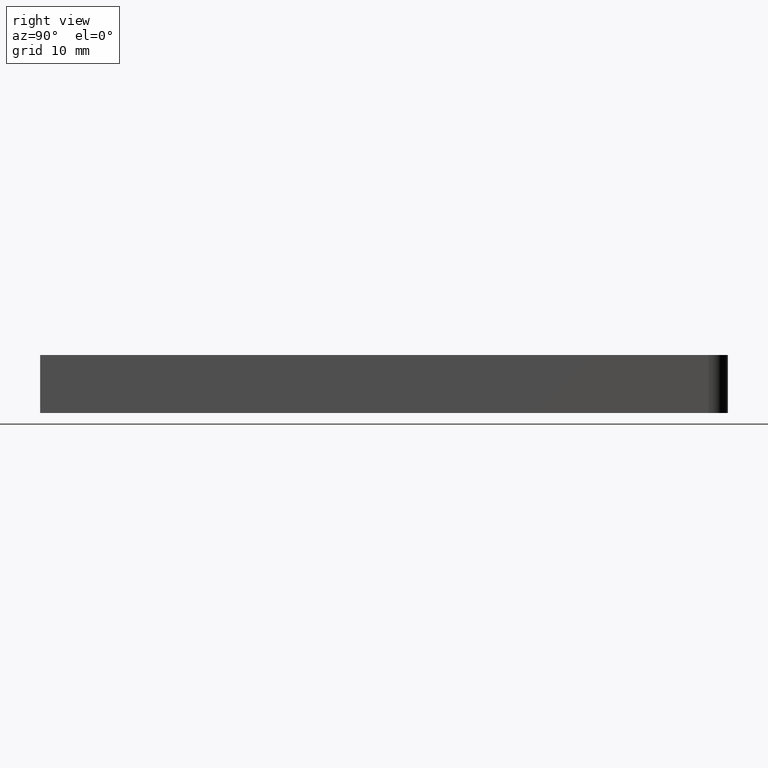
[diagram: clean part render]
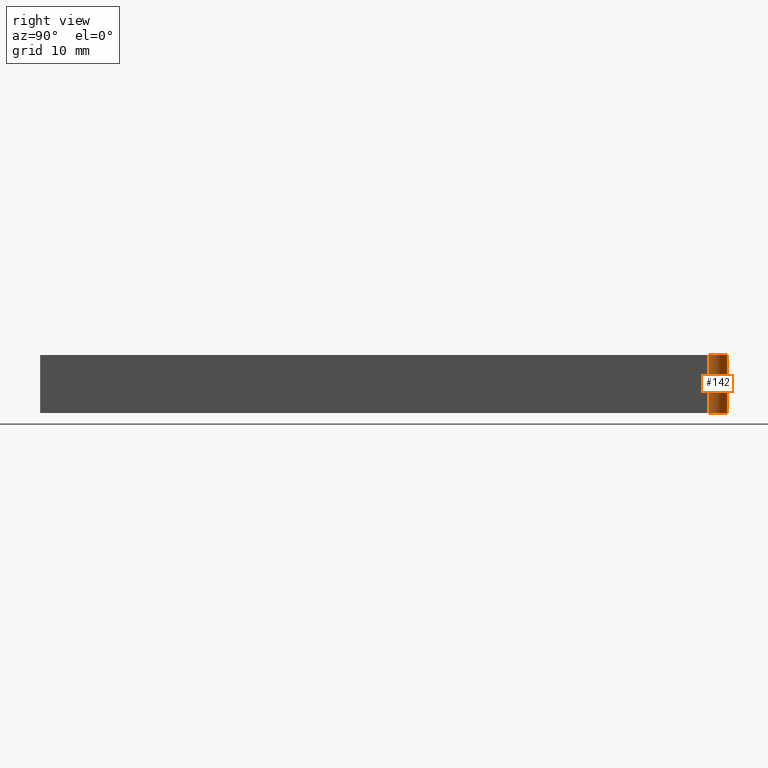
[diagram: same view with one face highlighted and labeled with its STEP entity id]
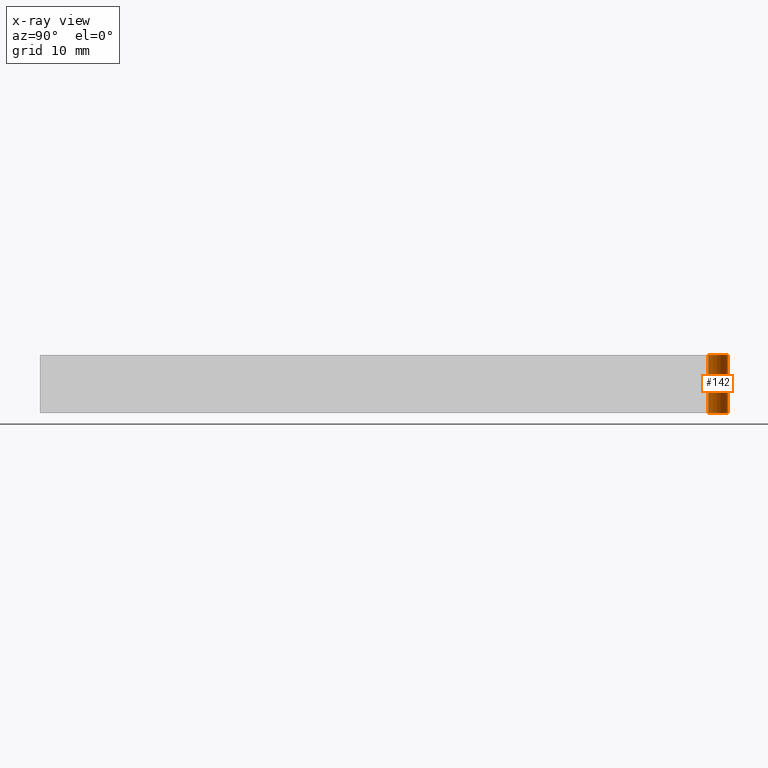
[diagram: x-ray of the same camera — body ghosted, the highlighted face saturated]
A machine part, right view. The second image highlights one B-rep face of the part: STEP entity #142.
The next image is the same camera in x-ray: the body ghosted, the highlighted face saturated — about 0% of this face is hidden behind the body in this view.
In plain terms, the highlighted cylindrical surface (edge-blend (fillet) strip) has radius 2 mm, axis along (0, 0, 1).
Its self-contained STEP definition (entity closure, byte-faithful):
#17=CYLINDRICAL_SURFACE('',#173,2.);
#22=FACE_OUTER_BOUND('',#30,.T.);
#30=EDGE_LOOP('',(#114,#115,#116,#117));
#35=CIRCLE('',#168,2.);
#37=CIRCLE('',#174,2.);
#47=LINE('',#245,#61);
#48=LINE('',#249,#62);
#61=VECTOR('',#203,10.);
#62=VECTOR('',#208,10.);
#67=VERTEX_POINT('',#221);
#71=VERTEX_POINT('',#229);
#75=VERTEX_POINT('',#243);
#76=VERTEX_POINT('',#247);
#83=EDGE_CURVE('',#67,#71,#35,.T.);
#90=EDGE_CURVE('',#71,#75,#47,.T.);
#91=EDGE_CURVE('',#75,#76,#37,.T.);
#92=EDGE_CURVE('',#67,#76,#48,.T.);
#114=ORIENTED_EDGE('',*,*,#91,.T.);
#115=ORIENTED_EDGE('',*,*,#92,.F.);
#116=ORIENTED_EDGE('',*,*,#83,.T.);
#117=ORIENTED_EDGE('',*,*,#90,.T.);
#142=ADVANCED_FACE('',(#22),#17,.T.);
#168=AXIS2_PLACEMENT_3D('',#231,#188,#189);
#173=AXIS2_PLACEMENT_3D('',#246,#204,#205);
#174=AXIS2_PLACEMENT_3D('',#248,#206,#207);
#188=DIRECTION('center_axis',(0.,0.,1.));
#189=DIRECTION('ref_axis',(1.,-2.22044604925031E-15,0.));
#203=DIRECTION('',(0.,0.,1.));
#204=DIRECTION('center_axis',(0.,0.,1.));
#205=DIRECTION('ref_axis',(1.,-2.22044604925031E-15,0.));
#206=DIRECTION('center_axis',(0.,0.,-1.));
#207=DIRECTION('ref_axis',(1.,-2.22044604925031E-15,0.));
#208=DIRECTION('',(0.,0.,1.));
#221=CARTESIAN_POINT('',(12.5,33.5,-3.));
#229=CARTESIAN_POINT('',(10.5,35.5,-3.));
#231=CARTESIAN_POINT('Origin',(10.5,33.5,-3.));
#243=CARTESIAN_POINT('',(10.5,35.5,3.));
#245=CARTESIAN_POINT('',(10.5,35.5,0.));
#246=CARTESIAN_POINT('Origin',(10.5,33.5,0.));
#247=CARTESIAN_POINT('',(12.5,33.5,3.));
#248=CARTESIAN_POINT('Origin',(10.5,33.5,3.));
#249=CARTESIAN_POINT('',(12.5,33.5,0.));